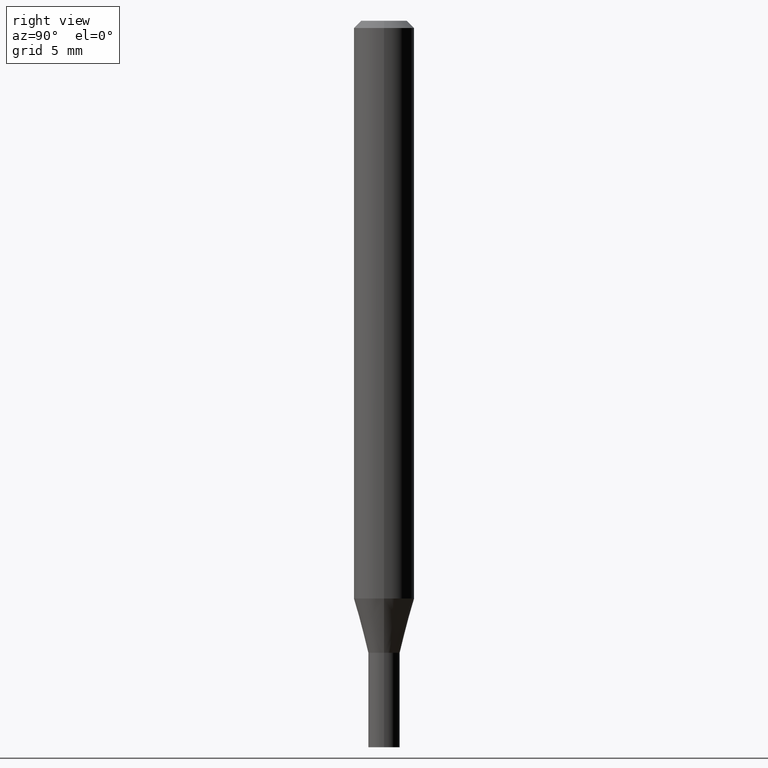
[diagram: clean part render]
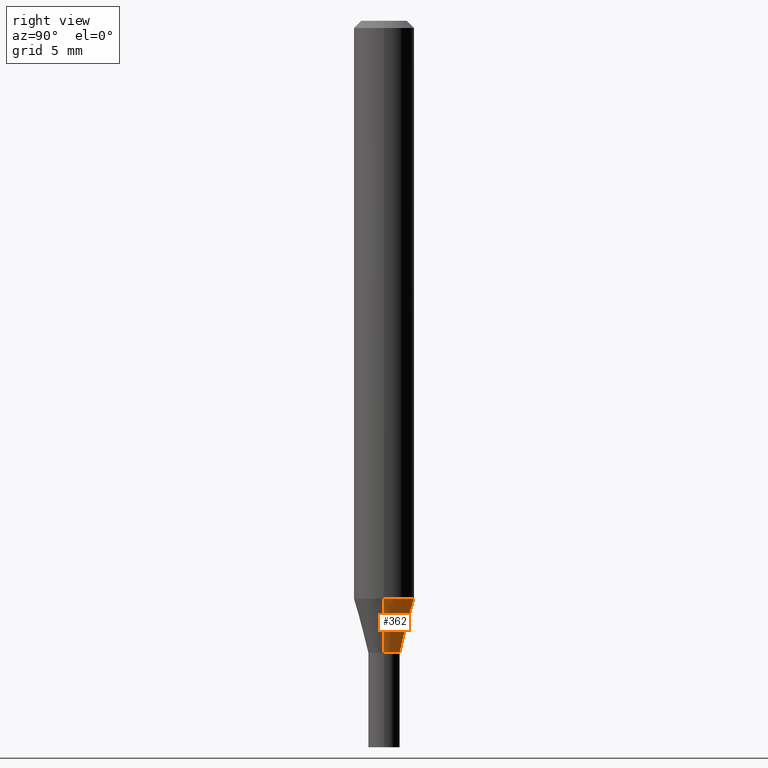
[diagram: same view with one face highlighted and labeled with its STEP entity id]
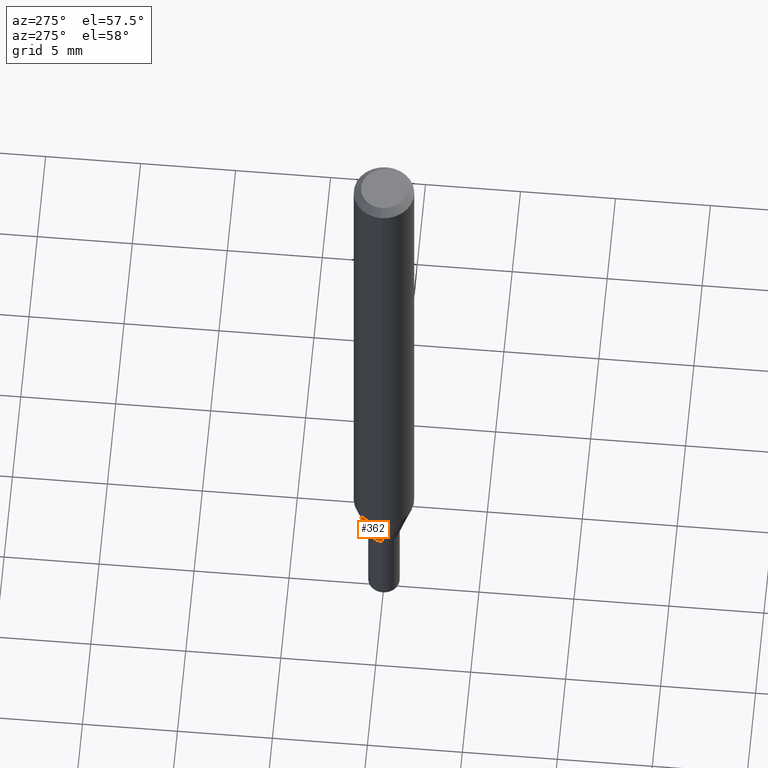
[diagram: same view with one face highlighted and labeled with its STEP entity id]
A machine part, right view. The second image highlights one B-rep face of the part: STEP entity #362.
A second angle (auxiliary view) of the same face is appended — the face is thin or edge-on in the first view.
In plain terms, the highlighted conical surface has half-angle 15 deg.
Its self-contained STEP definition (entity closure, byte-faithful):
#4 = AXIS2_PLACEMENT_3D ( 'NONE', #66, #348, #244 ) ;
#14 = VERTEX_POINT ( 'NONE', #154 ) ;
#51 = CARTESIAN_POINT ( 'NONE',  ( 0.03249999999999991784, -4.783329434215109105E-15, -1.305000000000000160 ) ) ;
#53 = DIRECTION ( 'NONE',  ( 1.000000000000000000, -6.982962677686270655E-15, 0.000000000000000000 ) ) ;
#66 = CARTESIAN_POINT ( 'NONE',  ( 3.191336792071603685E-29, -4.556383147190305752E-15, -1.305000000000000160 ) ) ;
#74 = ORIENTED_EDGE ( 'NONE', *, *, #382, .F. ) ;
#77 = EDGE_CURVE ( 'NONE', #121, #14, #233, .T. ) ;
#92 = DIRECTION ( 'NONE',  ( 1.000000000000000000, -6.982962677686276177E-15, 0.000000000000000000 ) ) ;
#121 = VERTEX_POINT ( 'NONE', #408 ) ;
#145 = EDGE_CURVE ( 'NONE', #427, #14, #377, .T. ) ;
#154 = CARTESIAN_POINT ( 'NONE',  ( -0.06250000000000000000, -3.721382364833005349E-15, -1.193038475772933760 ) ) ;
#156 = EDGE_CURVE ( 'NONE', #436, #427, #167, .T. ) ;
#164 = CARTESIAN_POINT ( 'NONE',  ( 3.191336792071603685E-29, -4.556383147190305752E-15, -1.305000000000000160 ) ) ;
#167 = CIRCLE ( 'NONE', #456, 0.03249999999999991784 ) ;
#170 = CARTESIAN_POINT ( 'NONE',  ( -0.03249999999999991784, -4.325456758068273381E-15, -1.305000000000000160 ) ) ;
#180 = LINE ( 'NONE', #323, #241 ) ;
#200 = AXIS2_PLACEMENT_3D ( 'NONE', #222, #439, #53 ) ;
#214 = CONICAL_SURFACE ( 'NONE', #4, 0.03249999999999991784, 0.2617993877991499074 ) ;
#222 = CARTESIAN_POINT ( 'NONE',  ( 2.917538377081371069E-29, -4.165471574683068754E-15, -1.193038475772933760 ) ) ;
#224 = DIRECTION ( 'NONE',  ( -0.2588190451025211836, 5.211531920934547886E-15, 0.9659258262890679791 ) ) ;
#233 = CIRCLE ( 'NONE', #200, 0.06250000000000000000 ) ;
#241 = VECTOR ( 'NONE', #465, 39.37007874015748854 ) ;
#244 = DIRECTION ( 'NONE',  ( 1.000000000000000000, -6.982962677686276177E-15, 0.000000000000000000 ) ) ;
#271 = ORIENTED_EDGE ( 'NONE', *, *, #156, .T. ) ;
#323 = CARTESIAN_POINT ( 'NONE',  ( 0.03249999999999991784, -4.783329434215109105E-15, -1.305000000000000160 ) ) ;
#331 = EDGE_LOOP ( 'NONE', ( #271, #378, #438, #74 ) ) ;
#340 = DIRECTION ( 'NONE',  ( -2.445468806185136597E-29, 3.491481338843145583E-15, 1.000000000000000000 ) ) ;
#348 = DIRECTION ( 'NONE',  ( -2.445468806185136597E-29, 3.491481338843145583E-15, 1.000000000000000000 ) ) ;
#362 = ADVANCED_FACE ( 'NONE', ( #385 ), #214, .T. ) ;
#377 = LINE ( 'NONE', #170, #379 ) ;
#378 = ORIENTED_EDGE ( 'NONE', *, *, #145, .T. ) ;
#379 = VECTOR ( 'NONE', #224, 39.37007874015748854 ) ;
#382 = EDGE_CURVE ( 'NONE', #436, #121, #180, .T. ) ;
#385 = FACE_OUTER_BOUND ( 'NONE', #331, .T. ) ;
#408 = CARTESIAN_POINT ( 'NONE',  ( 0.06250000000000000000, -4.601906742038460423E-15, -1.193038475772933760 ) ) ;
#427 = VERTEX_POINT ( 'NONE', #437 ) ;
#436 = VERTEX_POINT ( 'NONE', #51 ) ;
#437 = CARTESIAN_POINT ( 'NONE',  ( -0.03249999999999991784, -4.023419561450638971E-15, -1.305000000000000160 ) ) ;
#438 = ORIENTED_EDGE ( 'NONE', *, *, #77, .F. ) ;
#439 = DIRECTION ( 'NONE',  ( -2.445468806185136597E-29, 3.491481338843145583E-15, 1.000000000000000000 ) ) ;
#456 = AXIS2_PLACEMENT_3D ( 'NONE', #164, #340, #92 ) ;
#465 = DIRECTION ( 'NONE',  ( 0.2588190451025211836, 1.565188264969622559E-15, 0.9659258262890679791 ) ) ;